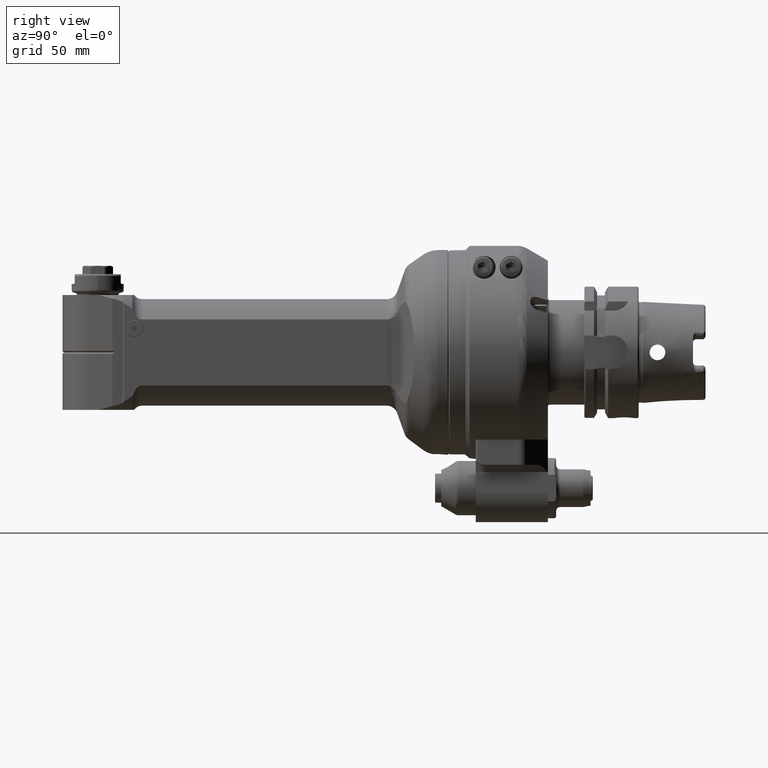
[diagram: clean part render]
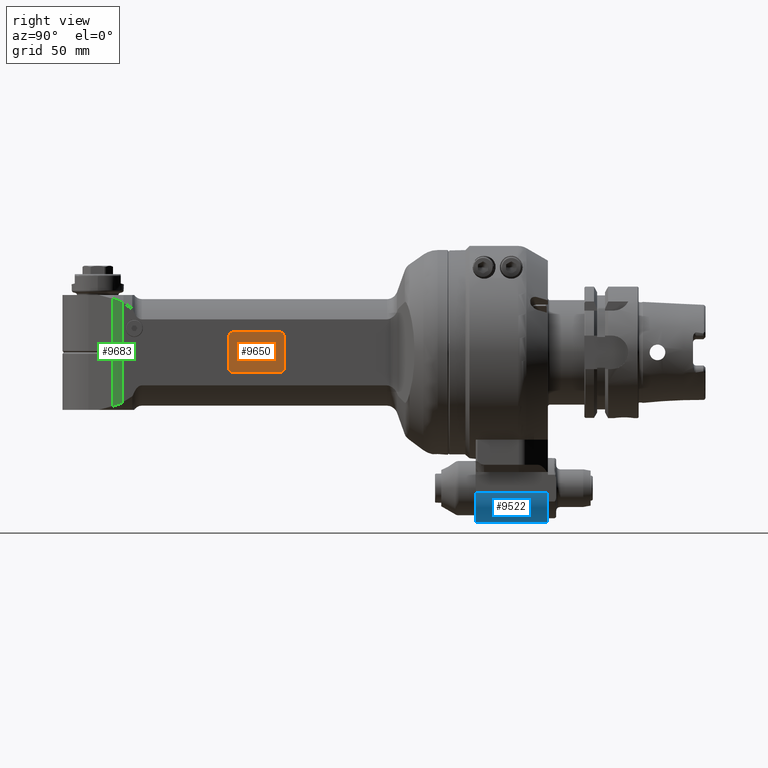
[diagram: same view with three faces highlighted in distinct colors, each labeled with its STEP entity id]
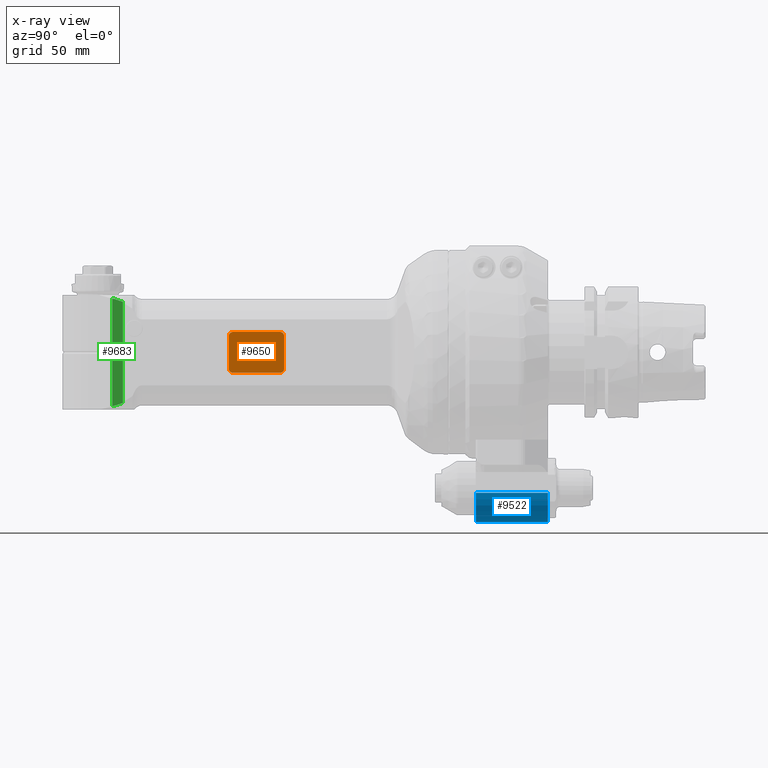
[diagram: x-ray of the same camera — body ghosted, the three highlighted faces saturated]
A machine part, right view with three faces highlighted in distinct colors.
The next image is the same camera in x-ray (body ghosted, the three faces saturated) — at least one of them is partly hidden behind the body in this view.
Their STEP definitions:

[orange] entity #9650 — the highlighted planar face has unit normal (1, -0, -0).
#940=PLANE('',#10739);
#1501=FACE_OUTER_BOUND('',#2105,.T.);
#2105=EDGE_LOOP('',(#8286,#8287,#8288,#8289,#8290,#8291,#8292,#8293));
#2758=LINE('',#46742,#3372);
#2759=LINE('',#46746,#3373);
#2760=LINE('',#46750,#3374);
#2761=LINE('',#46753,#3375);
#3372=VECTOR('',#12938,15.5);
#3373=VECTOR('',#12941,22.5);
#3374=VECTOR('',#12944,15.5);
#3375=VECTOR('',#12947,22.5);
#3837=CIRCLE('',#10737,2.);
#3839=CIRCLE('',#10740,2.);
#3840=CIRCLE('',#10741,2.);
#3841=CIRCLE('',#10742,2.);
#4645=VERTEX_POINT('',#46732);
#4646=VERTEX_POINT('',#46733);
#4649=VERTEX_POINT('',#46741);
#4650=VERTEX_POINT('',#46743);
#4651=VERTEX_POINT('',#46745);
#4652=VERTEX_POINT('',#46747);
#4653=VERTEX_POINT('',#46749);
#4654=VERTEX_POINT('',#46751);
#5901=EDGE_CURVE('',#4645,#4646,#3837,.T.);
#5905=EDGE_CURVE('',#4645,#4649,#2758,.T.);
#5906=EDGE_CURVE('',#4649,#4650,#3839,.T.);
#5907=EDGE_CURVE('',#4650,#4651,#2759,.T.);
#5908=EDGE_CURVE('',#4652,#4651,#3840,.T.);
#5909=EDGE_CURVE('',#4652,#4653,#2760,.T.);
#5910=EDGE_CURVE('',#4654,#4653,#3841,.T.);
#5911=EDGE_CURVE('',#4646,#4654,#2761,.T.);
#8286=ORIENTED_EDGE('',*,*,#5901,.F.);
#8287=ORIENTED_EDGE('',*,*,#5905,.T.);
#8288=ORIENTED_EDGE('',*,*,#5906,.T.);
#8289=ORIENTED_EDGE('',*,*,#5907,.T.);
#8290=ORIENTED_EDGE('',*,*,#5908,.F.);
#8291=ORIENTED_EDGE('',*,*,#5909,.T.);
#8292=ORIENTED_EDGE('',*,*,#5910,.F.);
#8293=ORIENTED_EDGE('',*,*,#5911,.F.);
#9650=ADVANCED_FACE('',(#1501),#940,.T.);
#10737=AXIS2_PLACEMENT_3D('',#46734,#12930,#12931);
#10739=AXIS2_PLACEMENT_3D('',#46740,#12936,#12937);
#10740=AXIS2_PLACEMENT_3D('',#46744,#12939,#12940);
#10741=AXIS2_PLACEMENT_3D('',#46748,#12942,#12943);
#10742=AXIS2_PLACEMENT_3D('',#46752,#12945,#12946);
#12930=DIRECTION('center_axis',(0.,0.,-1.));
#12931=DIRECTION('ref_axis',(1.,0.,0.));
#12936=DIRECTION('center_axis',(0.,0.,1.));
#12937=DIRECTION('ref_axis',(1.,0.,0.));
#12938=DIRECTION('',(0.,1.,0.));
#12939=DIRECTION('center_axis',(0.,0.,1.));
#12940=DIRECTION('ref_axis',(1.,0.,0.));
#12941=DIRECTION('',(-1.,0.,0.));
#12942=DIRECTION('center_axis',(0.,0.,-1.));
#12943=DIRECTION('ref_axis',(-1.,0.,0.));
#12944=DIRECTION('',(0.,-1.,0.));
#12945=DIRECTION('center_axis',(0.,0.,-1.));
#12946=DIRECTION('ref_axis',(0.,-1.,0.));
#12947=DIRECTION('',(-1.,0.,0.));
#46732=CARTESIAN_POINT('',(144.25,-7.75,19.6));
#46733=CARTESIAN_POINT('',(142.25,-9.75,19.6));
#46734=CARTESIAN_POINT('Origin',(142.25,-7.75,19.6));
#46740=CARTESIAN_POINT('Origin',(0.,0.,19.6));
#46741=CARTESIAN_POINT('',(144.25,7.75,19.6));
#46742=CARTESIAN_POINT('',(144.25,-7.75,19.6));
#46743=CARTESIAN_POINT('',(142.25,9.75,19.6));
#46744=CARTESIAN_POINT('Origin',(142.25,7.75,19.6));
#46745=CARTESIAN_POINT('',(119.75,9.75,19.6));
#46746=CARTESIAN_POINT('',(142.25,9.75,19.6));
#46747=CARTESIAN_POINT('',(117.75,7.75,19.6));
#46748=CARTESIAN_POINT('Origin',(119.75,7.75,19.6));
#46749=CARTESIAN_POINT('',(117.75,-7.75,19.6));
#46750=CARTESIAN_POINT('',(117.75,7.75,19.6));
#46751=CARTESIAN_POINT('',(119.75,-9.75,19.6));
#46752=CARTESIAN_POINT('Origin',(119.75,-7.75,19.6));
#46753=CARTESIAN_POINT('',(142.25,-9.75,19.6));

[blue] entity #9522 — the highlighted cylindrical surface (edge-blend (fillet) strip) has radius 14 mm, axis along (0, 1, 0).
#1373=FACE_OUTER_BOUND('',#1960,.T.);
#1960=EDGE_LOOP('',(#7717,#7718,#7719,#7720));
#2641=LINE('',#16374,#3255);
#2642=LINE('',#16376,#3256);
#3255=VECTOR('',#12403,34.5);
#3256=VECTOR('',#12406,34.5);
#3742=CIRCLE('',#10499,14.);
#3751=CIRCLE('',#10517,14.);
#4449=VERTEX_POINT('',#16254);
#4450=VERTEX_POINT('',#16256);
#4475=VERTEX_POINT('',#16334);
#4476=VERTEX_POINT('',#16336);
#5584=EDGE_CURVE('',#4449,#4450,#3742,.T.);
#5621=EDGE_CURVE('',#4475,#4476,#3751,.T.);
#5641=EDGE_CURVE('',#4475,#4450,#2641,.T.);
#5642=EDGE_CURVE('',#4449,#4476,#2642,.T.);
#7717=ORIENTED_EDGE('',*,*,#5642,.T.);
#7718=ORIENTED_EDGE('',*,*,#5621,.F.);
#7719=ORIENTED_EDGE('',*,*,#5641,.T.);
#7720=ORIENTED_EDGE('',*,*,#5584,.F.);
#9189=CYLINDRICAL_SURFACE('',#10531,14.);
#9522=ADVANCED_FACE('',(#1373),#9189,.T.);
#10499=AXIS2_PLACEMENT_3D('',#16257,#12304,#12305);
#10517=AXIS2_PLACEMENT_3D('',#16337,#12364,#12365);
#10531=AXIS2_PLACEMENT_3D('',#16375,#12404,#12405);
#12304=DIRECTION('center_axis',(1.,0.,0.));
#12305=DIRECTION('ref_axis',(0.,1.,0.));
#12364=DIRECTION('center_axis',(-1.,0.,0.));
#12365=DIRECTION('ref_axis',(0.,0.,1.));
#12403=DIRECTION('',(1.,0.,0.));
#12404=DIRECTION('center_axis',(-1.,0.,0.));
#12405=DIRECTION('ref_axis',(0.,-1.,0.));
#12406=DIRECTION('',(-1.,0.,0.));
#16254=CARTESIAN_POINT('',(-17.,81.25,1.));
#16256=CARTESIAN_POINT('',(-17.,67.25,15.));
#16257=CARTESIAN_POINT('Origin',(-17.,67.25,1.));
#16334=CARTESIAN_POINT('',(-51.5,67.25,15.));
#16336=CARTESIAN_POINT('',(-51.5,81.25,1.));
#16337=CARTESIAN_POINT('Origin',(-51.5,67.25,1.));
#16374=CARTESIAN_POINT('',(-51.5,67.25,15.));
#16375=CARTESIAN_POINT('Origin',(-43.,67.25,1.));
#16376=CARTESIAN_POINT('',(-17.,81.25,1.));

[green] entity #9683 — the highlighted planar face has unit normal (1, -0, -0).
#577=(
BOUNDED_CURVE()
B_SPLINE_CURVE(2,(#47245,#47246,#47247),.UNSPECIFIED.,.F.,.F.)
B_SPLINE_CURVE_WITH_KNOTS((3,3),(-0.601823943927438,-0.532308425116341),
 .UNSPECIFIED.)
CURVE()
GEOMETRIC_REPRESENTATION_ITEM()
RATIONAL_B_SPLINE_CURVE((1.00008369006102,1.00008268223523,1.00008079063121))
REPRESENTATION_ITEM('')
);
#578=(
BOUNDED_CURVE()
B_SPLINE_CURVE(2,(#47255,#47256,#47257),.UNSPECIFIED.,.F.,.F.)
B_SPLINE_CURVE_WITH_KNOTS((3,3),(-0.585201740228456,-0.137499948181765),
 .UNSPECIFIED.)
CURVE()
GEOMETRIC_REPRESENTATION_ITEM()
RATIONAL_B_SPLINE_CURVE((1.00025987922723,1.00049881588605,1.0002200580334))
REPRESENTATION_ITEM('')
);
#579=(
BOUNDED_CURVE()
B_SPLINE_CURVE(2,(#47259,#47260,#47261),.UNSPECIFIED.,.F.,.F.)
B_SPLINE_CURVE_WITH_KNOTS((3,3),(0.532308425829069,0.601823944096902),
 .UNSPECIFIED.)
CURVE()
GEOMETRIC_REPRESENTATION_ITEM()
RATIONAL_B_SPLINE_CURVE((1.00008079063239,1.00008268223648,1.00008369006236))
REPRESENTATION_ITEM('')
);
#580=(
BOUNDED_CURVE()
B_SPLINE_CURVE(2,(#47265,#47266,#47267),.UNSPECIFIED.,.F.,.F.)
B_SPLINE_CURVE_WITH_KNOTS((3,3),(3.3099568597124,3.49844085748232),
 .UNSPECIFIED.)
CURVE()
GEOMETRIC_REPRESENTATION_ITEM()
RATIONAL_B_SPLINE_CURVE((2.14209340484873,2.15696319666142,2.16982305039762))
REPRESENTATION_ITEM('')
);
#581=(
BOUNDED_CURVE()
B_SPLINE_CURVE(2,(#47289,#47290,#47291),.UNSPECIFIED.,.F.,.F.)
B_SPLINE_CURVE_WITH_KNOTS((3,3),(5.91033271752173,6.09881719190777),
 .UNSPECIFIED.)
CURVE()
GEOMETRIC_REPRESENTATION_ITEM()
RATIONAL_B_SPLINE_CURVE((2.1698230503973,2.15696316414261,2.14209332964644))
REPRESENTATION_ITEM('')
);
#582=(
BOUNDED_CURVE()
B_SPLINE_CURVE(2,(#47293,#47294,#47295),.UNSPECIFIED.,.F.,.F.)
B_SPLINE_CURVE_WITH_KNOTS((3,3),(0.171937284739677,0.619639075912966),
 .UNSPECIFIED.)
CURVE()
GEOMETRIC_REPRESENTATION_ITEM()
RATIONAL_B_SPLINE_CURVE((1.00025987922711,1.00049881588417,1.00022005803319))
REPRESENTATION_ITEM('')
);
#741=B_SPLINE_CURVE_WITH_KNOTS('',3,(#47269,#47270,#47271,#47272,#47273,
#47274,#47275,#47276,#47277,#47278,#47279,#47280,#47281,#47282,#47283,#47284,
#47285,#47286,#47287),.UNSPECIFIED.,.F.,.F.,(4,2,2,2,3,2,2,2,4),(-0.0392213072211653,
-0.0284786087702083,-0.0109323877727341,-0.00509372003969985,0.,0.00509372003969988,
0.0109323877727341,0.0284786087702084,0.039221110576124),.UNSPECIFIED.);
#949=PLANE('',#10825);
#1534=FACE_OUTER_BOUND('',#2143,.T.);
#2143=EDGE_LOOP('',(#8496,#8497,#8498,#8499,#8500,#8501,#8502,#8503,#8504,
#8505));
#2791=LINE('',#47253,#3405);
#2792=LINE('',#47263,#3406);
#2793=LINE('',#47292,#3407);
#3405=VECTOR('',#13143,10.);
#3406=VECTOR('',#13144,10.);
#3407=VECTOR('',#13145,10.);
#4743=VERTEX_POINT('',#47243);
#4744=VERTEX_POINT('',#47244);
#4745=VERTEX_POINT('',#47251);
#4746=VERTEX_POINT('',#47252);
#4747=VERTEX_POINT('',#47254);
#4748=VERTEX_POINT('',#47258);
#4749=VERTEX_POINT('',#47262);
#4750=VERTEX_POINT('',#47264);
#4751=VERTEX_POINT('',#47268);
#4752=VERTEX_POINT('',#47288);
#6030=EDGE_CURVE('',#4743,#4744,#577,.T.);
#6033=EDGE_CURVE('',#4745,#4746,#2791,.T.);
#6034=EDGE_CURVE('',#4747,#4746,#578,.T.);
#6035=EDGE_CURVE('',#4747,#4748,#579,.T.);
#6036=EDGE_CURVE('',#4749,#4748,#2792,.T.);
#6037=EDGE_CURVE('',#4750,#4749,#580,.T.);
#6038=EDGE_CURVE('',#4751,#4750,#741,.F.);
#6039=EDGE_CURVE('',#4752,#4751,#581,.T.);
#6040=EDGE_CURVE('',#4743,#4752,#2793,.T.);
#6041=EDGE_CURVE('',#4744,#4745,#582,.T.);
#8496=ORIENTED_EDGE('',*,*,#6033,.T.);
#8497=ORIENTED_EDGE('',*,*,#6034,.F.);
#8498=ORIENTED_EDGE('',*,*,#6035,.T.);
#8499=ORIENTED_EDGE('',*,*,#6036,.F.);
#8500=ORIENTED_EDGE('',*,*,#6037,.F.);
#8501=ORIENTED_EDGE('',*,*,#6038,.F.);
#8502=ORIENTED_EDGE('',*,*,#6039,.F.);
#8503=ORIENTED_EDGE('',*,*,#6040,.F.);
#8504=ORIENTED_EDGE('',*,*,#6030,.T.);
#8505=ORIENTED_EDGE('',*,*,#6041,.T.);
#9683=ADVANCED_FACE('',(#1534),#949,.T.);
#10825=AXIS2_PLACEMENT_3D('',#47250,#13141,#13142);
#13141=DIRECTION('center_axis',(0.,0.,1.));
#13142=DIRECTION('ref_axis',(1.,0.,0.));
#13143=DIRECTION('',(0.,-1.,0.));
#13144=DIRECTION('',(0.,-1.,0.));
#13145=DIRECTION('',(0.,-1.,0.));
#47243=CARTESIAN_POINT('',(199.9079654401,25.68459718532,19.5));
#47244=CARTESIAN_POINT('',(199.2182011938,25.62401217608,19.5));
#47245=CARTESIAN_POINT('Ctrl Pts',(199.907965440098,25.6845971853318,19.5));
#47246=CARTESIAN_POINT('Ctrl Pts',(199.56267608146,25.6542820098169,19.5));
#47247=CARTESIAN_POINT('Ctrl Pts',(199.218201193799,25.6240121760826,19.5));
#47250=CARTESIAN_POINT('Origin',(182.3867311186,0.25,19.5));
#47251=CARTESIAN_POINT('',(194.99000000228,24.184954514256,19.4999999990864));
#47252=CARTESIAN_POINT('',(194.99,-24.1849545114,19.5));
#47253=CARTESIAN_POINT('',(194.99,0.125000000000094,19.5));
#47254=CARTESIAN_POINT('',(199.218201199277,-25.6240121776466,19.4999999994482));
#47255=CARTESIAN_POINT('Ctrl Pts',(199.218201199198,-25.6240121778858,19.5));
#47256=CARTESIAN_POINT('Ctrl Pts',(197.043020981255,-24.8915985154044,19.5));
#47257=CARTESIAN_POINT('Ctrl Pts',(194.990000000002,-24.1849545113956,19.5));
#47258=CARTESIAN_POINT('',(199.9079654401,-25.68459718532,19.5));
#47259=CARTESIAN_POINT('Ctrl Pts',(199.218201199372,-25.6240121765642,19.5));
#47260=CARTESIAN_POINT('Ctrl Pts',(199.562676084253,-25.6542820100541,19.5));
#47261=CARTESIAN_POINT('Ctrl Pts',(199.907965440098,-25.6845971853238,19.5));
#47262=CARTESIAN_POINT('',(199.90796543257,-0.584601486542806,19.5000000009915));
#47263=CARTESIAN_POINT('',(199.907965440085,-13.375,19.5));
#47264=CARTESIAN_POINT('',(199.144887693787,-0.282843942786681,19.499999988328));
#47265=CARTESIAN_POINT('Ctrl Pts',(199.144887687526,-0.28284395763037,19.5));
#47266=CARTESIAN_POINT('Ctrl Pts',(199.531132764069,-0.445623667113112,
19.5));
#47267=CARTESIAN_POINT('Ctrl Pts',(199.907965432284,-0.584601487287161,
19.5));
#47268=CARTESIAN_POINT('',(199.144885723059,0.282843122807982,19.4999999953839));
#47269=CARTESIAN_POINT('Ctrl Pts',(199.144887688289,-0.282843957942824,
19.5));
#47270=CARTESIAN_POINT('Ctrl Pts',(199.109072470341,-0.267750071230535,
19.5));
#47271=CARTESIAN_POINT('Ctrl Pts',(199.074854761448,-0.250726380674795,
19.5));
#47272=CARTESIAN_POINT('Ctrl Pts',(198.993999636952,-0.202205668098958,
19.5));
#47273=CARTESIAN_POINT('Ctrl Pts',(198.939249204038,-0.158293163770694,
19.5));
#47274=CARTESIAN_POINT('Ctrl Pts',(198.896783738802,-0.0929262842415214,
19.5));
#47275=CARTESIAN_POINT('Ctrl Pts',(198.886521135591,-0.0719472559107836,
19.5));
#47276=CARTESIAN_POINT('Ctrl Pts',(198.87583656091,-0.0371075132530141,
19.5));
#47277=CARTESIAN_POINT('Ctrl Pts',(198.872677227937,-0.0169790667989658,
19.5));
#47278=CARTESIAN_POINT('Ctrl Pts',(198.872677227937,3.37230243729891E-14,
19.5));
#47279=CARTESIAN_POINT('Ctrl Pts',(198.872677227937,0.0169790667990333,
19.5));
#47280=CARTESIAN_POINT('Ctrl Pts',(198.87583656091,0.0371075132530817,19.5));
#47281=CARTESIAN_POINT('Ctrl Pts',(198.886521135591,0.0719472559108512,
19.5));
#47282=CARTESIAN_POINT('Ctrl Pts',(198.896783738802,0.0929262842415889,
19.5));
#47283=CARTESIAN_POINT('Ctrl Pts',(198.939249204038,0.158293163770762,19.5));
#47284=CARTESIAN_POINT('Ctrl Pts',(198.993999636952,0.202205668099025,19.5));
#47285=CARTESIAN_POINT('Ctrl Pts',(199.074854199399,0.25072604339236,19.5));
#47286=CARTESIAN_POINT('Ctrl Pts',(199.109071216393,0.267749449592163,19.5));
#47287=CARTESIAN_POINT('Ctrl Pts',(199.144885720838,0.282843128782109,19.5));
#47288=CARTESIAN_POINT('',(199.90796543257,0.584601486542986,19.5000000009915));
#47289=CARTESIAN_POINT('Ctrl Pts',(199.907965432284,0.584601487287317,19.5));
#47290=CARTESIAN_POINT('Ctrl Pts',(199.531131805497,0.445623313587265,19.5));
#47291=CARTESIAN_POINT('Ctrl Pts',(199.144885720584,0.282843128679333,19.5));
#47292=CARTESIAN_POINT('',(199.907965440085,-13.375,19.5));
#47293=CARTESIAN_POINT('Ctrl Pts',(199.218201193804,25.6240121760693,19.5));
#47294=CARTESIAN_POINT('Ctrl Pts',(197.043020980256,24.8915985150489,19.5));
#47295=CARTESIAN_POINT('Ctrl Pts',(194.990000002919,24.1849545123998,19.5));